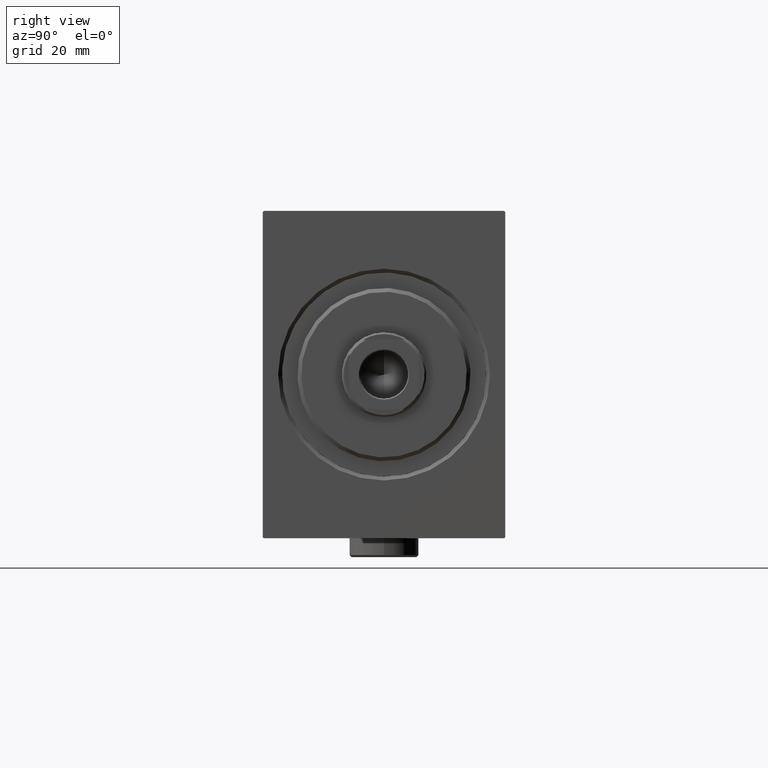
[diagram: clean part render]
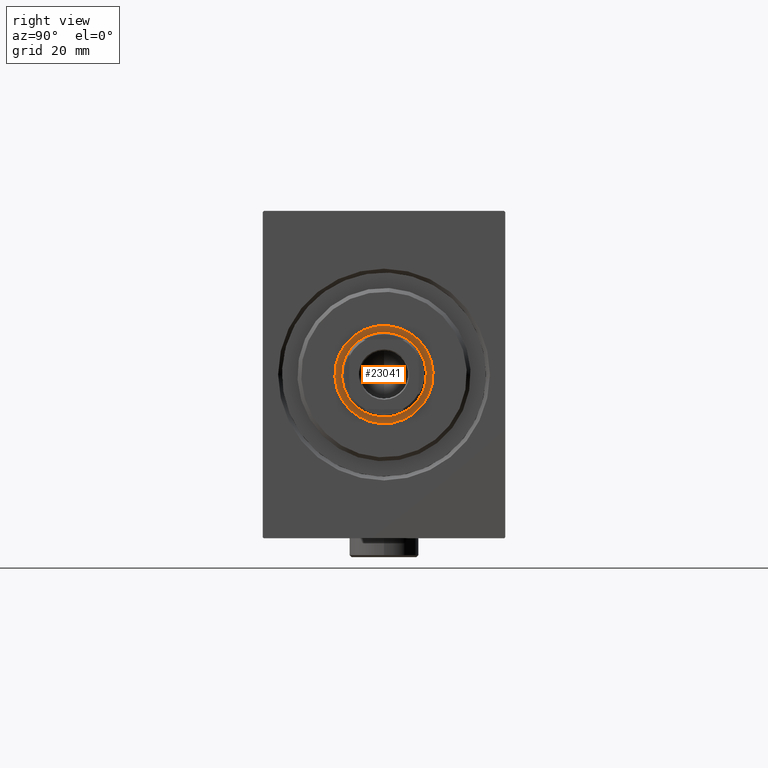
[diagram: same view with one face highlighted and labeled with its STEP entity id]
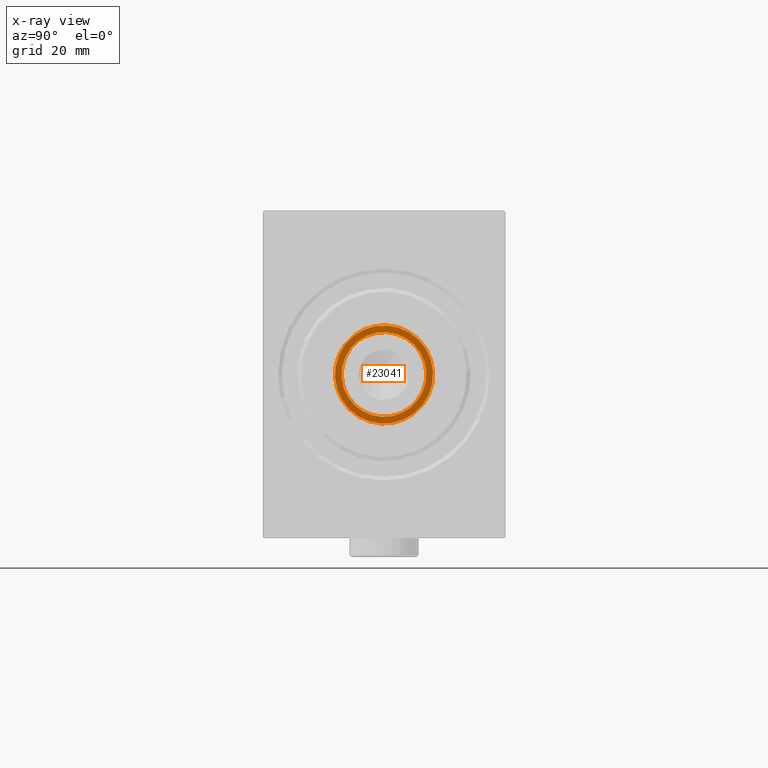
[diagram: x-ray of the same camera — body ghosted, the highlighted face saturated]
A machine part, right view. The second image highlights one B-rep face of the part: STEP entity #23041.
The next image is the same camera in x-ray: the body ghosted, the highlighted face saturated — about 0% of this face is hidden behind the body in this view.
In plain terms, the highlighted planar face has unit normal (1, -0, -0).
Its self-contained STEP definition (entity closure, byte-faithful):
#3259 = DIRECTION ( 'NONE',  ( 1.000000000000000000, 0.000000000000000000, 0.000000000000000000 ) ) ;
#3659 = EDGE_LOOP ( 'NONE', ( #24880, #26484 ) ) ;
#3737 = FACE_OUTER_BOUND ( 'NONE', #3659, .T. ) ;
#9600 = PLANE ( 'NONE',  #21662 ) ;
#10000 = CIRCLE ( 'NONE', #19327, 12.75000000000000000 ) ;
#11876 = CARTESIAN_POINT ( 'NONE',  ( 2.500000000000000444, 0.000000000000000000, 0.000000000000000000 ) ) ;
#13259 = DIRECTION ( 'NONE',  ( 0.000000000000000000, 0.000000000000000000, -1.000000000000000000 ) ) ;
#14269 = DIRECTION ( 'NONE',  ( 0.000000000000000000, 0.000000000000000000, -1.000000000000000000 ) ) ;
#14368 = AXIS2_PLACEMENT_3D ( 'NONE', #34025, #3259, #14269 ) ;
#15065 = CIRCLE ( 'NONE', #14368, 12.75000000000000000 ) ;
#15284 = ORIENTED_EDGE ( 'NONE', *, *, #23770, .F. ) ;
#16640 = CIRCLE ( 'NONE', #25974, 11.00000000000000000 ) ;
#16891 = EDGE_CURVE ( 'NONE', #17657, #20256, #10000, .T. ) ;
#17657 = VERTEX_POINT ( 'NONE', #40353 ) ;
#17791 = EDGE_CURVE ( 'NONE', #20256, #17657, #15065, .T. ) ;
#19327 = AXIS2_PLACEMENT_3D ( 'NONE', #43915, #40555, #26819 ) ;
#19930 = DIRECTION ( 'NONE',  ( 1.000000000000000000, 0.000000000000000000, 0.000000000000000000 ) ) ;
#20256 = VERTEX_POINT ( 'NONE', #41675 ) ;
#20357 = CARTESIAN_POINT ( 'NONE',  ( 2.500000000000000000, 0.000000000000000000, 0.000000000000000000 ) ) ;
#21662 = AXIS2_PLACEMENT_3D ( 'NONE', #20357, #19930, #36996 ) ;
#22573 = CIRCLE ( 'NONE', #26154, 11.00000000000000000 ) ;
#22887 = VERTEX_POINT ( 'NONE', #28019 ) ;
#23041 = ADVANCED_FACE ( 'NONE', ( #34501, #3737 ), #9600, .T. ) ;
#23770 = EDGE_CURVE ( 'NONE', #22887, #44079, #16640, .T. ) ;
#24880 = ORIENTED_EDGE ( 'NONE', *, *, #17791, .T. ) ;
#25974 = AXIS2_PLACEMENT_3D ( 'NONE', #11876, #42423, #38390 ) ;
#26154 = AXIS2_PLACEMENT_3D ( 'NONE', #30519, #44022, #13259 ) ;
#26484 = ORIENTED_EDGE ( 'NONE', *, *, #16891, .T. ) ;
#26819 = DIRECTION ( 'NONE',  ( 0.000000000000000000, 0.000000000000000000, -1.000000000000000000 ) ) ;
#28019 = CARTESIAN_POINT ( 'NONE',  ( 2.500000000000000444, 1.347111479062088405E-15, 11.00000000000000000 ) ) ;
#30519 = CARTESIAN_POINT ( 'NONE',  ( 2.500000000000000444, 0.000000000000000000, 0.000000000000000000 ) ) ;
#31092 = CARTESIAN_POINT ( 'NONE',  ( 2.500000000000000444, 0.000000000000000000, -11.00000000000000000 ) ) ;
#33365 = ORIENTED_EDGE ( 'NONE', *, *, #36041, .F. ) ;
#33904 = EDGE_LOOP ( 'NONE', ( #33365, #15284 ) ) ;
#34025 = CARTESIAN_POINT ( 'NONE',  ( 2.500000000000000000, 0.000000000000000000, 0.000000000000000000 ) ) ;
#34501 = FACE_BOUND ( 'NONE', #33904, .T. ) ;
#36041 = EDGE_CURVE ( 'NONE', #44079, #22887, #22573, .T. ) ;
#36996 = DIRECTION ( 'NONE',  ( 0.000000000000000000, 0.000000000000000000, -1.000000000000000000 ) ) ;
#38390 = DIRECTION ( 'NONE',  ( 0.000000000000000000, 0.000000000000000000, -1.000000000000000000 ) ) ;
#40353 = CARTESIAN_POINT ( 'NONE',  ( 2.500000000000000000, 1.561424668912875111E-15, 12.75000000000000000 ) ) ;
#40555 = DIRECTION ( 'NONE',  ( 1.000000000000000000, 0.000000000000000000, 0.000000000000000000 ) ) ;
#41675 = CARTESIAN_POINT ( 'NONE',  ( 2.500000000000000000, 0.000000000000000000, -12.75000000000000000 ) ) ;
#42423 = DIRECTION ( 'NONE',  ( 1.000000000000000000, 0.000000000000000000, 0.000000000000000000 ) ) ;
#43915 = CARTESIAN_POINT ( 'NONE',  ( 2.500000000000000000, 0.000000000000000000, 0.000000000000000000 ) ) ;
#44022 = DIRECTION ( 'NONE',  ( 1.000000000000000000, 0.000000000000000000, 0.000000000000000000 ) ) ;
#44079 = VERTEX_POINT ( 'NONE', #31092 ) ;